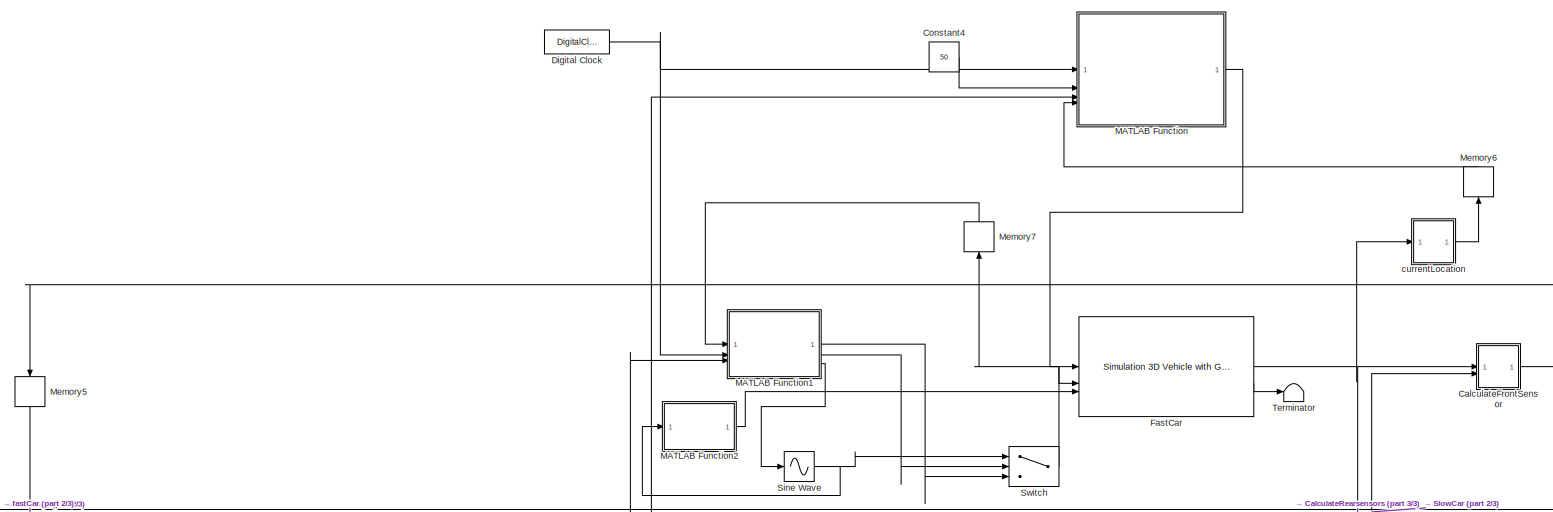
[diagram: root canvas - part 1/3, full width, top band]
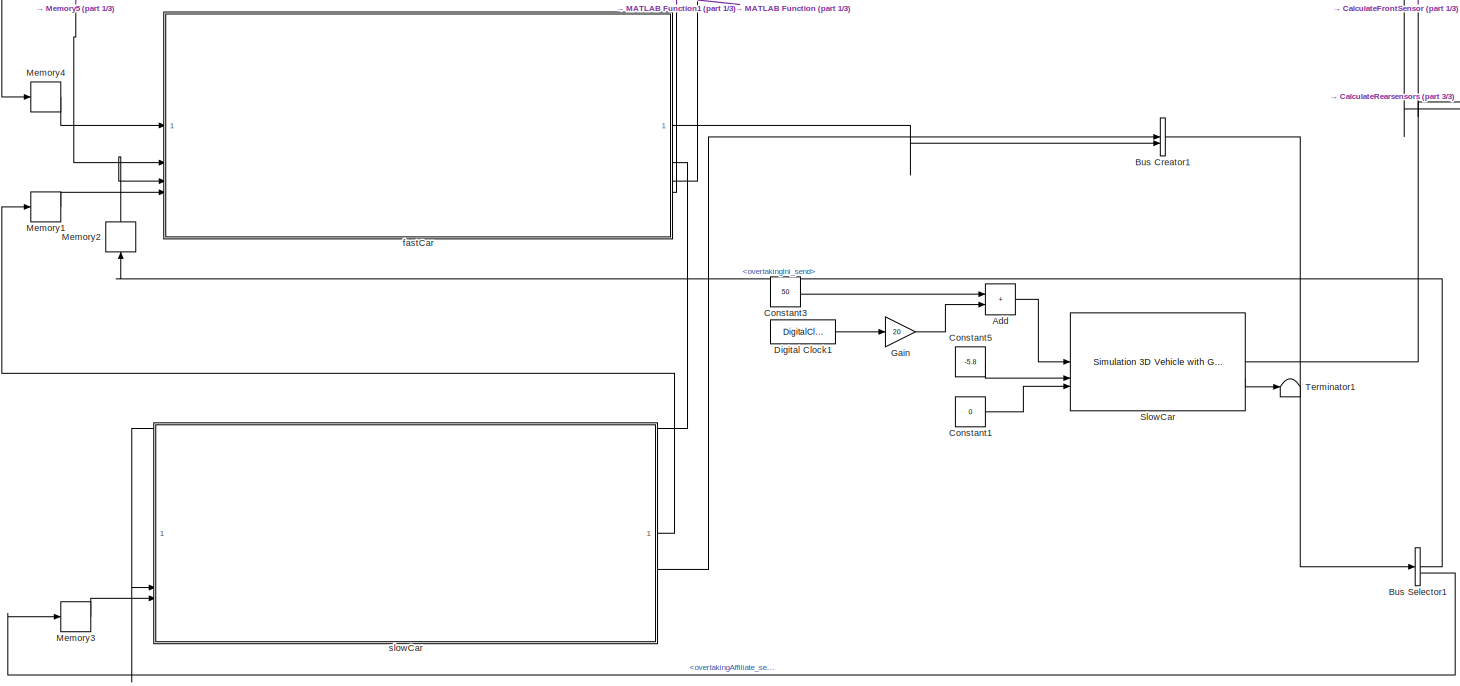
[diagram: root canvas - part 2/3, full width, bottom band]
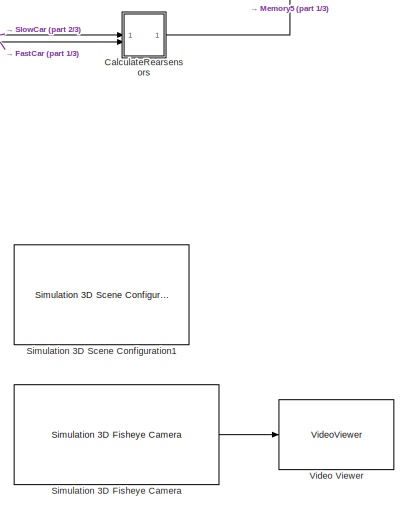
[diagram: root canvas - part 3/3, bottom right region]
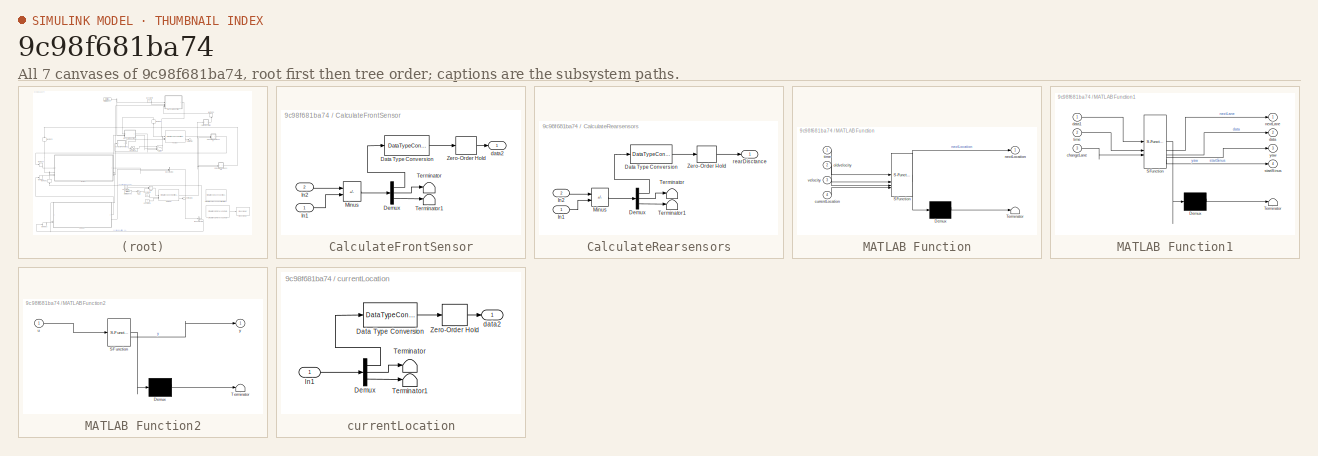
[diagram: thumbnail index - all 7 canvases of the model, root first then tree order]
MODEL slx_9c98f681ba74
KIND model
CONFIG AbsTol = auto
CONFIG EnableMultiTasking = off
CONFIG FixedStep = auto
CONFIG MaxStep = auto
CONFIG MinStep = auto
CONFIG RelTol = 1e-3
CONFIG SampleTimeConstraint = Unconstrained
CONFIG SolverName = VariableStepAuto
CONFIG StartTime = 0.0
CONFIG StopTime = 10.0
WORKSPACE source: mxarray member
WORKSPACE FastCarVariable = [0 0 0]
WORKSPACE FastCarYaw = [0 0 0]
WORKSPACE sinusA = 1.8
WORKSPACE sinusamplitude = 3.6
WORKSPACE sinusbias = -5.6
BLOCK [Sum] Add
  IconShape = rectangular
BLOCK [BusCreator] Bus Creator1
  DisplayOption = bar
  InheritFromInputs = on
  Inputs = 2
BLOCK [BusSelector] Bus Selector1
  OutputSignals = overtakingIni_send,overtakingAffiliate_send
BLOCK [SubSystem] CalculateFrontSensor
BLOCK [DataTypeConversion] CalculateFrontSensor/Data Type Conversion
  OutDataTypeStr = int32
  OutMax = 100
  OutMin = [0]
  RndMeth = Floor
  SaturateOnIntegerOverflow = off
BLOCK [Demux] CalculateFrontSensor/Demux
  Outputs = 3
BLOCK [Inport] CalculateFrontSensor/In1
BLOCK [Inport] CalculateFrontSensor/In2
  Port = 2
BLOCK [Sum] CalculateFrontSensor/Minus
  AccumDataTypeStr = int32
  IconShape = rectangular
  InputSameDT = on
  Inputs = +-
BLOCK [Terminator] CalculateFrontSensor/Terminator
BLOCK [Terminator] CalculateFrontSensor/Terminator1
BLOCK [ZeroOrderHold] CalculateFrontSensor/Zero-Order Hold
  SampleTime = 0.3
BLOCK [Outport] CalculateFrontSensor/data2
BLOCK [SubSystem] CalculateRearsensors
BLOCK [DataTypeConversion] CalculateRearsensors/Data Type Conversion
  OutDataTypeStr = int32
  OutMax = 100
  OutMin = [0]
  RndMeth = Floor
  SaturateOnIntegerOverflow = off
BLOCK [Demux] CalculateRearsensors/Demux
  Outputs = 3
BLOCK [Inport] CalculateRearsensors/In1
BLOCK [Inport] CalculateRearsensors/In2
  Port = 2
BLOCK [Sum] CalculateRearsensors/Minus
  AccumDataTypeStr = int32
  IconShape = rectangular
  InputSameDT = on
  Inputs = +-
BLOCK [Terminator] CalculateRearsensors/Terminator
BLOCK [Terminator] CalculateRearsensors/Terminator1
BLOCK [ZeroOrderHold] CalculateRearsensors/Zero-Order Hold
  SampleTime = 0.3
BLOCK [Outport] CalculateRearsensors/rearDisctance
BLOCK [Constant] Constant1
  Value = 0
BLOCK [Constant] Constant3
  Value = 50
BLOCK [Constant] Constant4
  Value = 50
BLOCK [Constant] Constant5
  Value = -5.8
BLOCK [DigitalClock] Digital Clock
  SampleTime = 0.01
BLOCK [DigitalClock] Digital Clock1
  SampleTime = 0.01
BLOCK [Reference] FastCar  REF=sim3dautolib/Simulation 3D Vehicle with Ground Following
  LibrarySourceBlock = drivingsim3d/Simulation 3D Vehicle with Ground Following
  Priority = -1
  SourceBlock = sim3dautolib/Simulation 3D Vehicle with Ground Following
  SourceType = Simulation 3D Vehicle with Ground Following
BLOCK [Gain] Gain
  Gain = 20
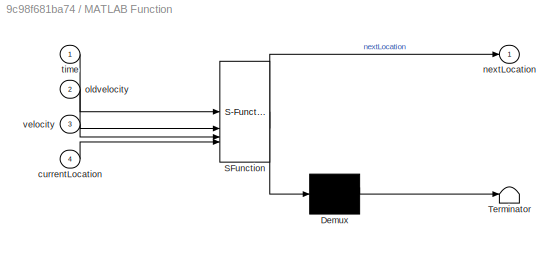
BLOCK [SubSystem] MATLAB Function
  ErrorFcn = Stateflow.Translate.translate
  LibrarySourceBlock = simulink/User-Defined\nFunctions/MATLAB Function
  PermitHierarchicalResolution = ExplicitOnly
  SFBlockType = MATLAB Function
  TreatAsAtomicUnit = on
BLOCK [Demux] MATLAB Function/ Demux 
  Outputs = 1
BLOCK [S-Function] MATLAB Function/ SFunction 
  EnableBusSupport = on
  FunctionName = sf_sfun
  PortCounts = [4 2]
  SFcnIsStateOwnerBlock = off
  SFunctionDeploymentMode = off
  Tag = Stateflow S-Function 2
BLOCK [Terminator] MATLAB Function/ Terminator 
BLOCK [Inport] MATLAB Function/currentLocation
  Port = 4
BLOCK [Outport] MATLAB Function/nextLocation
BLOCK [Inport] MATLAB Function/oldvelocity
  Port = 2
BLOCK [Inport] MATLAB Function/time
BLOCK [Inport] MATLAB Function/velocity
  Port = 3
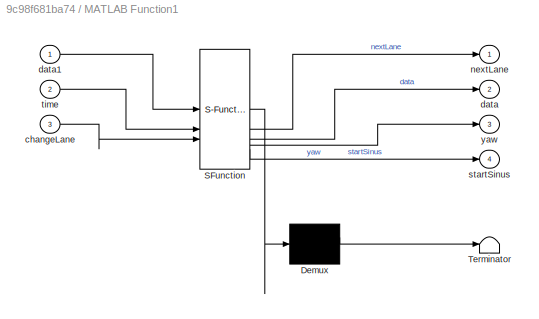
BLOCK [SubSystem] MATLAB Function1
  ErrorFcn = Stateflow.Translate.translate
  LibrarySourceBlock = simulink/User-Defined\nFunctions/MATLAB Function
  PermitHierarchicalResolution = ExplicitOnly
  SFBlockType = MATLAB Function
  TreatAsAtomicUnit = on
BLOCK [Demux] MATLAB Function1/ Demux 
  Outputs = 1
BLOCK [S-Function] MATLAB Function1/ SFunction 
  EnableBusSupport = on
  FunctionName = sf_sfun
  PortCounts = [3 5]
  SFcnIsStateOwnerBlock = off
  SFunctionDeploymentMode = off
  Tag = Stateflow S-Function 1
BLOCK [Terminator] MATLAB Function1/ Terminator 
BLOCK [Inport] MATLAB Function1/changeLane
  Port = 3
BLOCK [Outport] MATLAB Function1/data
  Port = 2
BLOCK [Inport] MATLAB Function1/data1
BLOCK [Outport] MATLAB Function1/nextLane
BLOCK [Outport] MATLAB Function1/startSinus
  Port = 4
BLOCK [Inport] MATLAB Function1/time
  Port = 2
BLOCK [Outport] MATLAB Function1/yaw
  Port = 3
BLOCK [SubSystem] MATLAB Function2
  ErrorFcn = Stateflow.Translate.translate
  LibrarySourceBlock = simulink/User-Defined\nFunctions/MATLAB Function
  PermitHierarchicalResolution = ExplicitOnly
  SFBlockType = MATLAB Function
  TreatAsAtomicUnit = on
BLOCK [Demux] MATLAB Function2/ Demux 
  Outputs = 1
BLOCK [S-Function] MATLAB Function2/ SFunction 
  EnableBusSupport = on
  FunctionName = sf_sfun
  PortCounts = [1 2]
  SFcnIsStateOwnerBlock = off
  SFunctionDeploymentMode = off
  Tag = Stateflow S-Function 3
BLOCK [Terminator] MATLAB Function2/ Terminator 
BLOCK [Inport] MATLAB Function2/u
BLOCK [Outport] MATLAB Function2/y
BLOCK [Memory] Memory1
BLOCK [Memory] Memory2
  NameLocation = right
BLOCK [Memory] Memory3
BLOCK [Memory] Memory4
BLOCK [Memory] Memory5
  NameLocation = left
BLOCK [Memory] Memory6
  NameLocation = left
BLOCK [Memory] Memory7
  NameLocation = left
BLOCK [Reference] Simulation 3D Fisheye Camera  REF=sim3dcameralib/Simulation 3D Fisheye Camera
  LibrarySourceBlock = drivingsim3d/Simulation 3D Fisheye Camera
  Priority = 1
  SourceBlock = sim3dcameralib/Simulation 3D Fisheye Camera
  SourceType = Simulation 3D Fisheye Camera
BLOCK [Reference] Simulation 3D Scene Configuration1  REF=sim3dlib/Simulation 3D Scene Configuration
  LibrarySourceBlock = drivingsim3d/Simulation 3D Scene Configuration
  Priority = 0
  SourceBlock = sim3dlib/Simulation 3D Scene Configuration
  SourceType = Simulation 3D Scene Configuration
BLOCK [Sin] Sine Wave
  Amplitude = 1.8
  Bias = -4
  Frequency = 100/pi
  Phase = pi/2
  SampleTime = 0
  Samples = 1
  TimeSource = Use external signal
BLOCK [Reference] SlowCar  REF=sim3dautolib/Simulation 3D Vehicle with Ground Following
  LibrarySourceBlock = drivingsim3d/Simulation 3D Vehicle with Ground Following
  Priority = -1
  SourceBlock = sim3dautolib/Simulation 3D Vehicle with Ground Following
  SourceType = Simulation 3D Vehicle with Ground Following
BLOCK [Switch] Switch
  Criteria = u2 > Threshold
  InputSameDT = off
  SaturateOnIntegerOverflow = off
BLOCK [Terminator] Terminator
BLOCK [Terminator] Terminator1
BLOCK [VideoViewer] Video Viewer
  Commented = on
  FigPos = [399 900 1271 692]
  ScopeSpecificationString = vipscopes.VideoViewerScopeCfg('CurrentConfiguration', extmgr.ConfigurationSet(extmgr.Configuration('Core','General UI',true),extmgr.Configuration('Core','Source UI',true),extmgr.Configuration('Sources','WiredSimulink',true),extmgr.Configuration('Visuals','Video',true),extmgr.Configuration('Tools','Image Navigation Tools',true,'Magnification',0.666666666666667),extmgr.Configuration('Tools','Image T...<+110ch>
  colormapValue = gray(256)
BLOCK [SubSystem] currentLocation
BLOCK [DataTypeConversion] currentLocation/Data Type Conversion
  OutDataTypeStr = double
  OutMax = 100
  OutMin = [0]
  RndMeth = Floor
  SaturateOnIntegerOverflow = off
BLOCK [Demux] currentLocation/Demux
  Outputs = 3
BLOCK [Inport] currentLocation/In1
BLOCK [Terminator] currentLocation/Terminator
BLOCK [Terminator] currentLocation/Terminator1
BLOCK [ZeroOrderHold] currentLocation/Zero-Order Hold
  SampleTime = 0.01
BLOCK [Outport] currentLocation/data2
BLOCK [ModelReference] fastCar
  ModelNameDialog = RoboCarModel.slx
  ModelReferenceVersion = 1.137
  PortSchema = {"entries":[{"content":{"sides":[{"content":{"connectorIds":["In2","In1","In3","In4"]},"type":"ConnectorPlacement.EquallySpacedRectSide","uuid":"95733cf0-032d-453a-9995-7e8d3e1a24c3"},{"content":{"connectorIds":["Out2","Out1","Out3","Out4"],"side":"RIGHT"},"type":"ConnectorPlacement.EquallySpacedRectSide","uuid":"8d40af39-e74b-4bad-b693-9b5567a60d93"},{"content":{"side":"TOP"},"type":"ConnectorPla...<+261ch>
BLOCK [ModelReference] slowCar
  ModelNameDialog = RoboCarModel.slx
  ModelReferenceVersion = 1.137
  PortSchema = {"entries":[{"content":{"sides":[{"content":{"connectorIds":["In1","In2","In3","In4"]},"type":"ConnectorPlacement.EquallySpacedRectSide","uuid":"95733cf0-032d-453a-9995-7e8d3e1a24c3"},{"content":{"connectorIds":["Out2","Out1","Out3","Out4"],"side":"RIGHT"},"type":"ConnectorPlacement.EquallySpacedRectSide","uuid":"8d40af39-e74b-4bad-b693-9b5567a60d93"},{"content":{"side":"TOP"},"type":"ConnectorPla...<+261ch>
LINE Add:1 -> SlowCar:1
LINE Bus Creator1:1 -> Bus Selector1:1
LINE Bus Selector1:1 -> Memory2:1
LINE Bus Selector1:2 -> Memory3:1
LINE CalculateFrontSensor/Data Type Conversion:1 -> CalculateFrontSensor/Zero-Order Hold:1
LINE CalculateFrontSensor/Demux:1 -> CalculateFrontSensor/Data Type Conversion:1
LINE CalculateFrontSensor/Demux:2 -> CalculateFrontSensor/Terminator:1
LINE CalculateFrontSensor/Demux:3 -> CalculateFrontSensor/Terminator1:1
LINE CalculateFrontSensor/In1:1 -> CalculateFrontSensor/Minus:2
LINE CalculateFrontSensor/In2:1 -> CalculateFrontSensor/Minus:1
LINE CalculateFrontSensor/Minus:1 -> CalculateFrontSensor/Demux:1
LINE CalculateFrontSensor/Zero-Order Hold:1 -> CalculateFrontSensor/data2:1
LINE CalculateFrontSensor:1 -> Memory4:1
LINE CalculateRearsensors/Data Type Conversion:1 -> CalculateRearsensors/Zero-Order Hold:1
LINE CalculateRearsensors/Demux:1 -> CalculateRearsensors/Data Type Conversion:1
LINE CalculateRearsensors/Demux:2 -> CalculateRearsensors/Terminator:1
LINE CalculateRearsensors/Demux:3 -> CalculateRearsensors/Terminator1:1
LINE CalculateRearsensors/In1:1 -> CalculateRearsensors/Minus:2
LINE CalculateRearsensors/In2:1 -> CalculateRearsensors/Minus:1
LINE CalculateRearsensors/Minus:1 -> CalculateRearsensors/Demux:1
LINE CalculateRearsensors/Zero-Order Hold:1 -> CalculateRearsensors/rearDisctance:1
LINE CalculateRearsensors:1 -> Memory5:1
LINE Constant1:1 -> SlowCar:3
LINE Constant3:1 -> Add:1
LINE Constant4:1 -> MATLAB Function:2
LINE Constant5:1 -> SlowCar:2
LINE Digital Clock1:1 -> Gain:1
NET Digital Clock:1 -> MATLAB Function1:2, MATLAB Function:1
NET FastCar:1 -> CalculateFrontSensor:1, CalculateRearsensors:2, currentLocation:1
LINE FastCar:2 -> Terminator:1
LINE Gain:1 -> Add:2
LINE MATLAB Function1:1 -> Switch:3
LINE MATLAB Function1:2 -> Switch:2
LINE MATLAB Function1:4 -> Sine Wave:1
LINE MATLAB Function2:1 -> FastCar:3
LINE MATLAB Function:1 -> FastCar:1
LINE Memory1:1 -> fastCar:4
LINE Memory2:1 -> fastCar:3
LINE Memory3:1 -> slowCar:4
LINE Memory4:1 -> fastCar:1
LINE Memory5:1 -> fastCar:2
LINE Memory6:1 -> MATLAB Function:4
LINE Memory7:1 -> MATLAB Function1:1
LINE Simulation 3D Fisheye Camera:1 -> Video Viewer:1
NET Sine Wave:1 -> MATLAB Function2:1, Switch:1
NET SlowCar:1 -> CalculateFrontSensor:2, CalculateRearsensors:1
LINE SlowCar:2 -> Terminator1:1
NET Switch:1 -> FastCar:2, Memory7:1
LINE currentLocation/Data Type Conversion:1 -> currentLocation/Zero-Order Hold:1
LINE currentLocation/Demux:1 -> currentLocation/Data Type Conversion:1
LINE currentLocation/Demux:2 -> currentLocation/Terminator:1
LINE currentLocation/Demux:3 -> currentLocation/Terminator1:1
LINE currentLocation/In1:1 -> currentLocation/Demux:1
LINE currentLocation/Zero-Order Hold:1 -> currentLocation/data2:1
LINE currentLocation:1 -> Memory6:1
LINE fastCar:1 -> Bus Creator1:2
LINE fastCar:2 -> slowCar:3
LINE fastCar:3 -> MATLAB Function:3
LINE fastCar:4 -> MATLAB Function1:3
LINE slowCar:1 -> Memory1:1
LINE slowCar:2 -> Bus Creator1:1
note: NET lines group one-source signal fan-out (src -> all destinations, sorted); 1:1 wires keep LINE
CHART MATLAB Function1 states=1 transitions=1
  STATE_LABEL 'eML_blk_kernel()'
  STATE_LABEL 'SCRIPT:\nfunction [nextLane,data, yaw, startSinus] = fcn( data1, time, changeLane)\n\nif(changeLane == 1 && data1 < -2.3)\n    data = 1;\n    startSinus = time;\n    yaw = 0;\n    nextLane = -2.2;\nelseif(data1 > -2.3 && changeLane == 1)\n    yaw = 0;\n    data = 0; \n    startSinus = 0;\n    nextLane = -2.2;    \nelseif (changeLane == 2 && data1 > -5.4)\n    yaw = (asin(cos(time)) * (180/pi));\n    nextLane = -...<+230ch>'
CHART MATLAB Function states=1 transitions=1
  STATE_LABEL 'eML_blk_kernel()'
  STATE_LABEL 'SCRIPT:\nfunction nextLocation = fcn(time, oldvelocity, velocity, currentLocation)\npersistent tim\npersistent persVelocity\npersistent newTime\nif (isempty(tim))\n      tim = 0.0;\n      newTime = 0.0;\n      persVelocity = 0.0;\nend\nif (tim == 0 && velocity > 0)\n    persVelocity = double(velocity);\n    tim = time;\nend\nif (persVelocity ~= velocity && velocity > 0 && newTime == 0)\n    newTime = time;\nend\ni...<+446ch>'
CHART MATLAB Function2 states=1 transitions=1
  STATE_LABEL 'eML_blk_kernel()'
  STATE_LABEL 'SCRIPT:\nfunction y = fcn(u)\nif(u ==0 )\n    y = 0;\nelseif (u == -2.2)\n    y = 0;\nelse\n    y = ((cos(u)));\n\nend\n'
CHART  states=0 transitions=0
CHART  states=0 transitions=0
CHART  states=0 transitions=0
